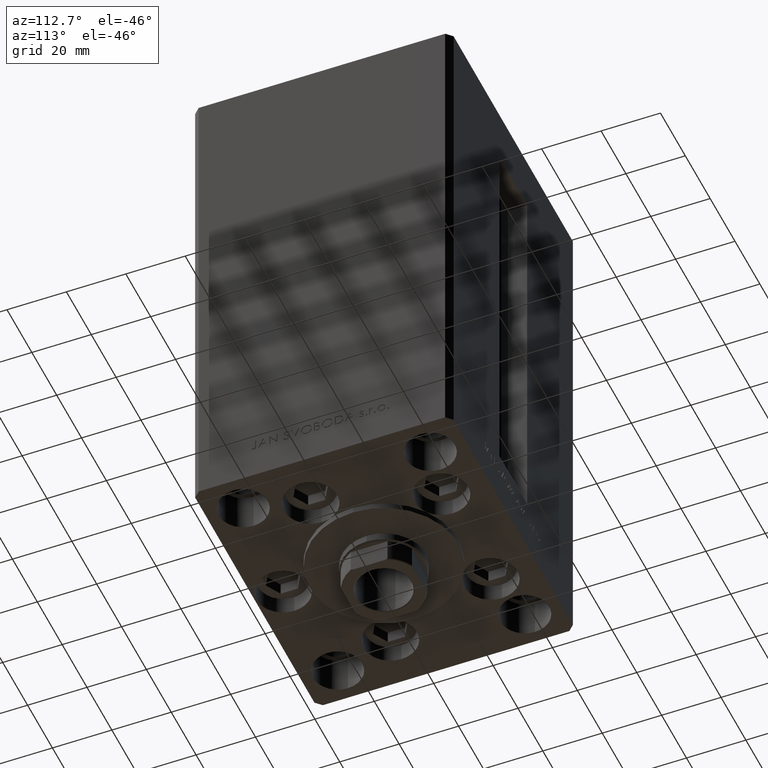
[diagram: clean part render]
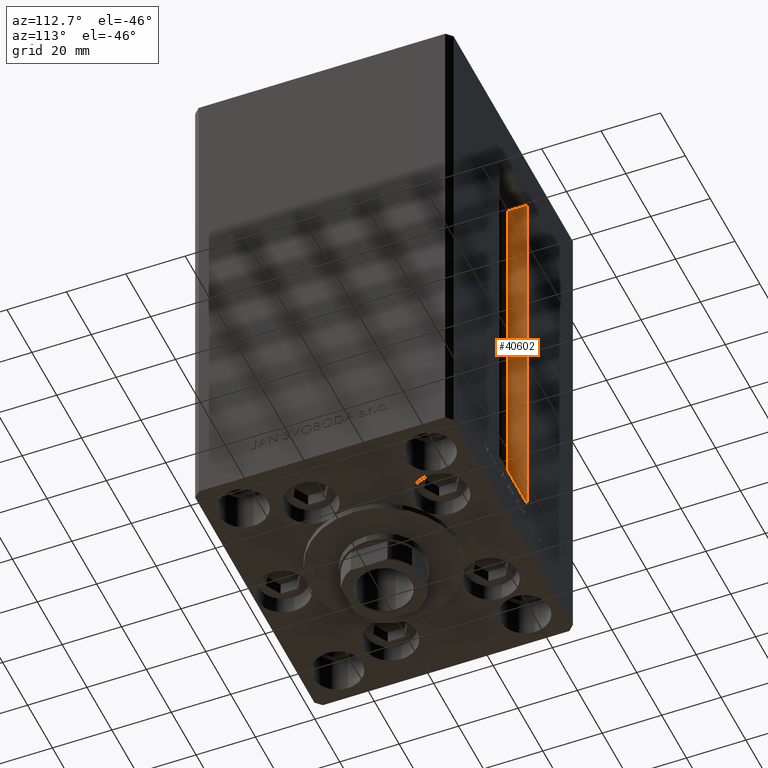
[diagram: same view with one face highlighted and labeled with its STEP entity id]
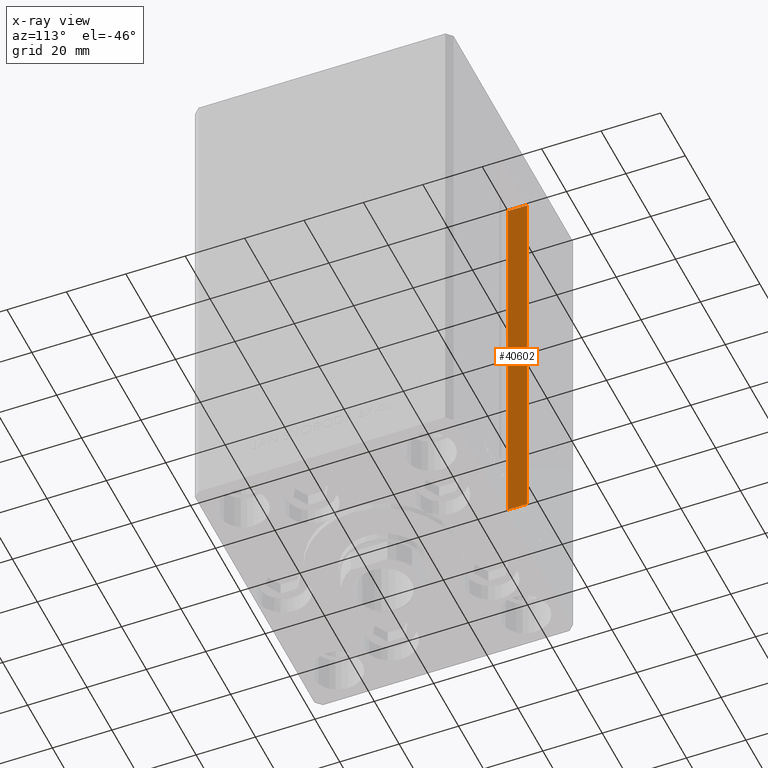
[diagram: x-ray of the same camera — body ghosted, the highlighted face saturated]
A machine part, auxiliary view. The second image highlights one B-rep face of the part: STEP entity #40602.
The next image is the same camera in x-ray: the body ghosted, the highlighted face saturated — about 0% of this face is hidden behind the body in this view.
In plain terms, the highlighted planar face has unit normal (-1, 0, 0).
Its self-contained STEP definition (entity closure, byte-faithful):
#301 = ORIENTED_EDGE ( 'NONE', *, *, #34700, .F. ) ;
#1177 = EDGE_LOOP ( 'NONE', ( #48299, #27974, #25915, #301 ) ) ;
#1485 = DIRECTION ( 'NONE',  ( 0.000000000000000000, 1.000000000000000000, 0.000000000000000000 ) ) ;
#5684 = DIRECTION ( 'NONE',  ( -1.000000000000000000, 0.000000000000000000, 0.000000000000000000 ) ) ;
#6105 = AXIS2_PLACEMENT_3D ( 'NONE', #25013, #5684, #34156 ) ;
#6987 = VECTOR ( 'NONE', #9558, 1000.000000000000000 ) ;
#8562 = CARTESIAN_POINT ( 'NONE',  ( -11.24999999999999822, 43.50000000000000000, 0.000000000000000000 ) ) ;
#9558 = DIRECTION ( 'NONE',  ( -0.000000000000000000, -0.000000000000000000, 1.000000000000000000 ) ) ;
#10296 = VERTEX_POINT ( 'NONE', #26731 ) ;
#10756 = VECTOR ( 'NONE', #1485, 1000.000000000000000 ) ;
#15787 = CARTESIAN_POINT ( 'NONE',  ( -11.24999999999999822, 36.99999999999999289, 133.5000000000000000 ) ) ;
#20718 = LINE ( 'NONE', #39774, #34399 ) ;
#21054 = EDGE_CURVE ( 'NONE', #23027, #49915, #20718, .T. ) ;
#23027 = VERTEX_POINT ( 'NONE', #37564 ) ;
#24445 = VERTEX_POINT ( 'NONE', #28657 ) ;
#25013 = CARTESIAN_POINT ( 'NONE',  ( -11.24999999999999822, 36.99999999999999289, 0.000000000000000000 ) ) ;
#25073 = LINE ( 'NONE', #8562, #6987 ) ;
#25915 = ORIENTED_EDGE ( 'NONE', *, *, #45467, .T. ) ;
#26317 = DIRECTION ( 'NONE',  ( -0.000000000000000000, -1.000000000000000000, -0.000000000000000000 ) ) ;
#26731 = CARTESIAN_POINT ( 'NONE',  ( -11.24999999999999822, 43.50000000000000000, 0.000000000000000000 ) ) ;
#27898 = VECTOR ( 'NONE', #26317, 1000.000000000000000 ) ;
#27974 = ORIENTED_EDGE ( 'NONE', *, *, #36119, .F. ) ;
#28657 = CARTESIAN_POINT ( 'NONE',  ( -11.24999999999999822, 43.50000000000000000, 133.5000000000000000 ) ) ;
#31925 = DIRECTION ( 'NONE',  ( -0.000000000000000000, -0.000000000000000000, 1.000000000000000000 ) ) ;
#34156 = DIRECTION ( 'NONE',  ( 0.000000000000000000, 0.000000000000000000, 1.000000000000000000 ) ) ;
#34399 = VECTOR ( 'NONE', #31925, 1000.000000000000000 ) ;
#34700 = EDGE_CURVE ( 'NONE', #49915, #24445, #43904, .T. ) ;
#35547 = CARTESIAN_POINT ( 'NONE',  ( -11.24999999999999822, 0.000000000000000000, 133.5000000000000000 ) ) ;
#36119 = EDGE_CURVE ( 'NONE', #10296, #23027, #37987, .T. ) ;
#37564 = CARTESIAN_POINT ( 'NONE',  ( -11.24999999999999822, 36.99999999999999289, 0.000000000000000000 ) ) ;
#37987 = LINE ( 'NONE', #45860, #27898 ) ;
#39774 = CARTESIAN_POINT ( 'NONE',  ( -11.24999999999999822, 36.99999999999999289, 0.000000000000000000 ) ) ;
#40602 = ADVANCED_FACE ( 'NONE', ( #44307 ), #40728, .F. ) ;
#40728 = PLANE ( 'NONE',  #6105 ) ;
#43904 = LINE ( 'NONE', #35547, #10756 ) ;
#44307 = FACE_OUTER_BOUND ( 'NONE', #1177, .T. ) ;
#45467 = EDGE_CURVE ( 'NONE', #10296, #24445, #25073, .T. ) ;
#45860 = CARTESIAN_POINT ( 'NONE',  ( -11.24999999999999822, 36.99999999999999289, 0.000000000000000000 ) ) ;
#48299 = ORIENTED_EDGE ( 'NONE', *, *, #21054, .F. ) ;
#49915 = VERTEX_POINT ( 'NONE', #15787 ) ;